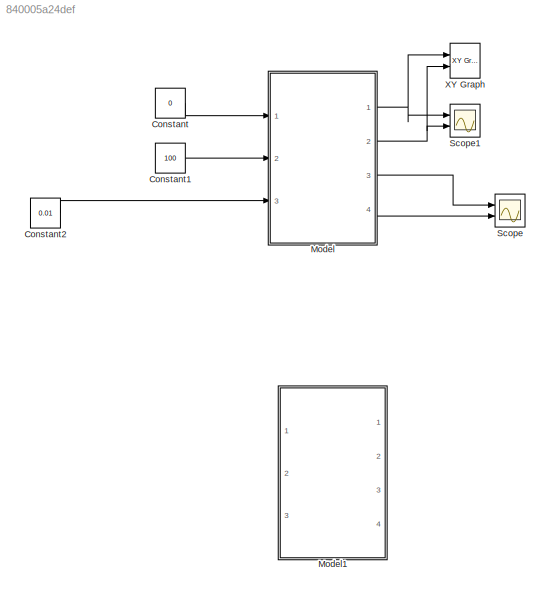
MODEL slx_840005a24def
KIND model
CONFIG AbsTol = auto
CONFIG EnableMultiTasking = off
CONFIG FixedStep = auto
CONFIG MaxStep = auto
CONFIG MinStep = auto
CONFIG RelTol = 1e-3
CONFIG SampleTimeConstraint = Unconstrained
CONFIG Solver = VariableStepAuto
CONFIG SolverName = VariableStepAuto
CONFIG StartTime = 0.0
CONFIG StopTime = 10.0
BLOCK [Constant] Constant
  Value = 0
BLOCK [Constant] Constant1
  Value = 100
BLOCK [Constant] Constant2
  Value = 0.01
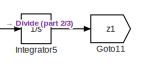
[diagram: Model - part 1/3, top right region]
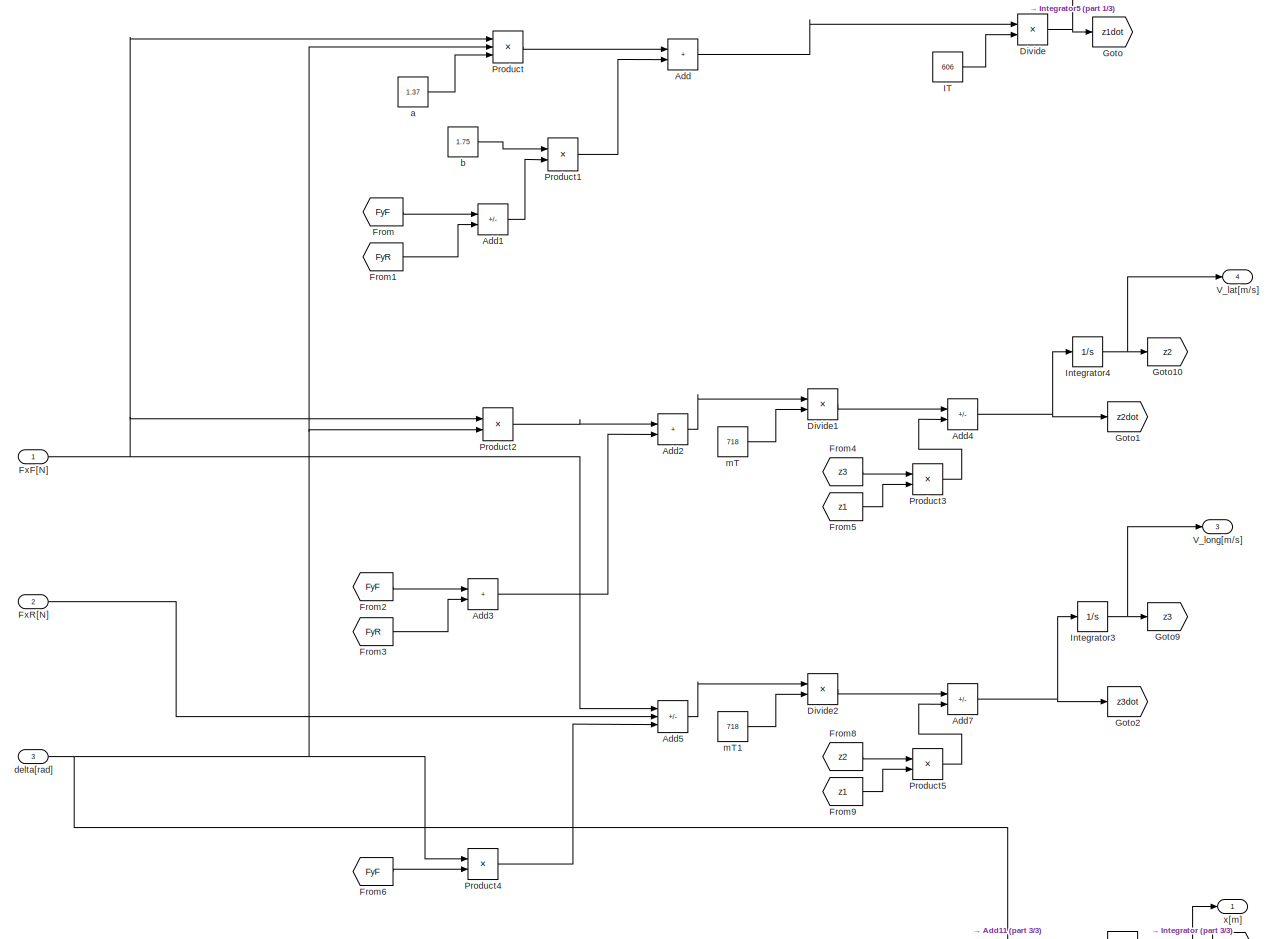
[diagram: Model - part 2/3, full width, top band]
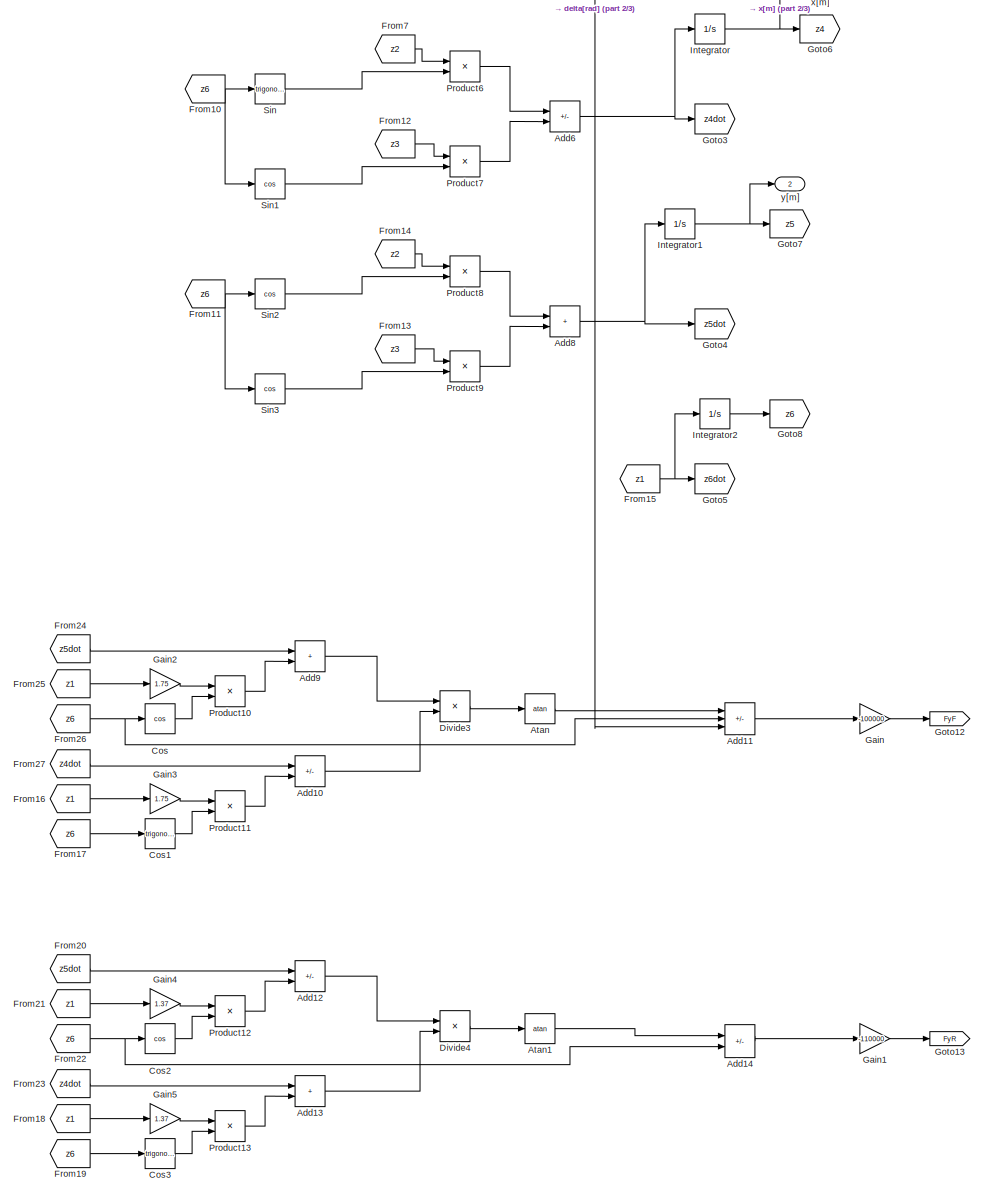
[diagram: Model - part 3/3, bottom center region]
BLOCK [SubSystem] Model
  Ports = [3, 4]
  RequestExecContextInheritance = off
BLOCK [Sum] Model/Add
  IconShape = rectangular
  Ports = [2, 1]
BLOCK [Sum] Model/Add1
  IconShape = rectangular
  Inputs = +-
  Ports = [2, 1]
BLOCK [Sum] Model/Add10
  IconShape = rectangular
  Inputs = +-
  Ports = [2, 1]
BLOCK [Sum] Model/Add11
  IconShape = rectangular
  Inputs = +--
  Ports = [3, 1]
BLOCK [Sum] Model/Add12
  IconShape = rectangular
  Inputs = +-
  Ports = [2, 1]
BLOCK [Sum] Model/Add13
  IconShape = rectangular
  Ports = [2, 1]
BLOCK [Sum] Model/Add14
  IconShape = rectangular
  Inputs = +-
  Ports = [2, 1]
BLOCK [Sum] Model/Add2
  IconShape = rectangular
  Ports = [2, 1]
BLOCK [Sum] Model/Add3
  IconShape = rectangular
  Ports = [2, 1]
BLOCK [Sum] Model/Add4
  IconShape = rectangular
  Inputs = +-
  Ports = [2, 1]
BLOCK [Sum] Model/Add5
  IconShape = rectangular
  Inputs = ++-
  Ports = [3, 1]
BLOCK [Sum] Model/Add6
  IconShape = rectangular
  Inputs = -+
  Ports = [2, 1]
BLOCK [Sum] Model/Add7
  IconShape = rectangular
  Inputs = +-
  Ports = [2, 1]
BLOCK [Sum] Model/Add8
  IconShape = rectangular
  Ports = [2, 1]
BLOCK [Sum] Model/Add9
  IconShape = rectangular
  Ports = [2, 1]
BLOCK [Trigonometry] Model/Atan
  Operator = atan
  Ports = [1, 1]
BLOCK [Trigonometry] Model/Atan1
  Operator = atan
  Ports = [1, 1]
BLOCK [Trigonometry] Model/Cos
  Operator = cos
  Ports = [1, 1]
BLOCK [Trigonometry] Model/Cos1
  Ports = [1, 1]
BLOCK [Trigonometry] Model/Cos2
  Operator = cos
  Ports = [1, 1]
BLOCK [Trigonometry] Model/Cos3
  Ports = [1, 1]
BLOCK [Product] Model/Divide
  Inputs = */
  Ports = [2, 1]
BLOCK [Product] Model/Divide1
  Inputs = */
  Ports = [2, 1]
BLOCK [Product] Model/Divide2
  Inputs = */
  Ports = [2, 1]
BLOCK [Product] Model/Divide3
  Inputs = */
  Ports = [2, 1]
BLOCK [Product] Model/Divide4
  Inputs = */
  Ports = [2, 1]
BLOCK [From] Model/From
  GotoTag = FyF
BLOCK [From] Model/From1
  GotoTag = FyR
BLOCK [From] Model/From10
  GotoTag = z6
BLOCK [From] Model/From11
  GotoTag = z6
BLOCK [From] Model/From12
  GotoTag = z3
BLOCK [From] Model/From13
  GotoTag = z3
BLOCK [From] Model/From14
  GotoTag = z2
BLOCK [From] Model/From15
  GotoTag = z1
BLOCK [From] Model/From16
  GotoTag = z1
BLOCK [From] Model/From17
  GotoTag = z6
BLOCK [From] Model/From18
  GotoTag = z1
BLOCK [From] Model/From19
  GotoTag = z6
BLOCK [From] Model/From2
  GotoTag = FyF
BLOCK [From] Model/From20
  GotoTag = z5dot
BLOCK [From] Model/From21
  GotoTag = z1
BLOCK [From] Model/From22
  GotoTag = z6
BLOCK [From] Model/From23
  GotoTag = z4dot
BLOCK [From] Model/From24
  GotoTag = z5dot
BLOCK [From] Model/From25
  GotoTag = z1
BLOCK [From] Model/From26
  GotoTag = z6
BLOCK [From] Model/From27
  GotoTag = z4dot
BLOCK [From] Model/From3
  GotoTag = FyR
BLOCK [From] Model/From4
  GotoTag = z3
BLOCK [From] Model/From5
  GotoTag = z1
BLOCK [From] Model/From6
  GotoTag = FyF
BLOCK [From] Model/From7
  GotoTag = z2
BLOCK [From] Model/From8
  GotoTag = z2
BLOCK [From] Model/From9
  GotoTag = z1
BLOCK [Inport] Model/FxF[N]
  Unit = N
BLOCK [Inport] Model/FxR[N]
  Port = 2
  Unit = N
BLOCK [Gain] Model/Gain
  Gain = -100000
BLOCK [Gain] Model/Gain1
  Gain = -110000
BLOCK [Gain] Model/Gain2
  Gain = 1.75
BLOCK [Gain] Model/Gain3
  Gain = 1.75
BLOCK [Gain] Model/Gain4
  Gain = 1.37
BLOCK [Gain] Model/Gain5
  Gain = 1.37
BLOCK [Goto] Model/Goto
  GotoTag = z1dot
BLOCK [Goto] Model/Goto1
  GotoTag = z2dot
BLOCK [Goto] Model/Goto10
  GotoTag = z2
BLOCK [Goto] Model/Goto11
  GotoTag = z1
BLOCK [Goto] Model/Goto12
  GotoTag = FyF
BLOCK [Goto] Model/Goto13
  GotoTag = FyR
BLOCK [Goto] Model/Goto2
  GotoTag = z3dot
BLOCK [Goto] Model/Goto3
  GotoTag = z4dot
BLOCK [Goto] Model/Goto4
  GotoTag = z5dot
BLOCK [Goto] Model/Goto5
  GotoTag = z6dot
BLOCK [Goto] Model/Goto6
  GotoTag = z4
BLOCK [Goto] Model/Goto7
  GotoTag = z5
BLOCK [Goto] Model/Goto8
  GotoTag = z6
BLOCK [Goto] Model/Goto9
  GotoTag = z3
BLOCK [Constant] Model/IT
  Value = 606
BLOCK [Integrator] Model/Integrator
  Ports = [1, 1]
BLOCK [Integrator] Model/Integrator1
  Ports = [1, 1]
BLOCK [Integrator] Model/Integrator2
  Ports = [1, 1]
BLOCK [Integrator] Model/Integrator3
  InitialCondition = 10
  Ports = [1, 1]
BLOCK [Integrator] Model/Integrator4
  Ports = [1, 1]
BLOCK [Integrator] Model/Integrator5
  Ports = [1, 1]
BLOCK [Product] Model/Product
  Inputs = 3
  Ports = [3, 1]
BLOCK [Product] Model/Product1
  Ports = [2, 1]
BLOCK [Product] Model/Product10
  Ports = [2, 1]
BLOCK [Product] Model/Product11
  Ports = [2, 1]
BLOCK [Product] Model/Product12
  Ports = [2, 1]
BLOCK [Product] Model/Product13
  Ports = [2, 1]
BLOCK [Product] Model/Product2
  Ports = [2, 1]
BLOCK [Product] Model/Product3
  Ports = [2, 1]
BLOCK [Product] Model/Product4
  Ports = [2, 1]
BLOCK [Product] Model/Product5
  Ports = [2, 1]
BLOCK [Product] Model/Product6
  Ports = [2, 1]
BLOCK [Product] Model/Product7
  Ports = [2, 1]
BLOCK [Product] Model/Product8
  Ports = [2, 1]
BLOCK [Product] Model/Product9
  Ports = [2, 1]
BLOCK [Trigonometry] Model/Sin
  Ports = [1, 1]
BLOCK [Trigonometry] Model/Sin1
  Operator = cos
  Ports = [1, 1]
BLOCK [Trigonometry] Model/Sin2
  Operator = cos
  Ports = [1, 1]
BLOCK [Trigonometry] Model/Sin3
  Operator = cos
  Ports = [1, 1]
BLOCK [Outport] Model/V_lat[m//s]
  Port = 4
  Unit = m/s
BLOCK [Outport] Model/V_long[m//s]
  Port = 3
  Unit = m/s
BLOCK [Constant] Model/a
  Value = 1.37
BLOCK [Constant] Model/b
  Value = 1.75
BLOCK [Inport] Model/delta[rad]
  Port = 3
  Unit = rad
BLOCK [Constant] Model/mT
  Value = 718
BLOCK [Constant] Model/mT1
  Value = 718
BLOCK [Outport] Model/x[m]
  Unit = m
BLOCK [Outport] Model/y[m]
  Port = 2
  Unit = m
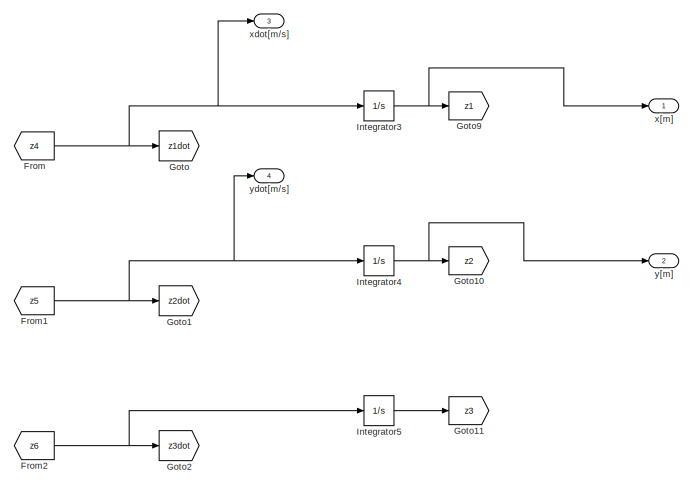
[diagram: Model1 - part 1/3, top right region]
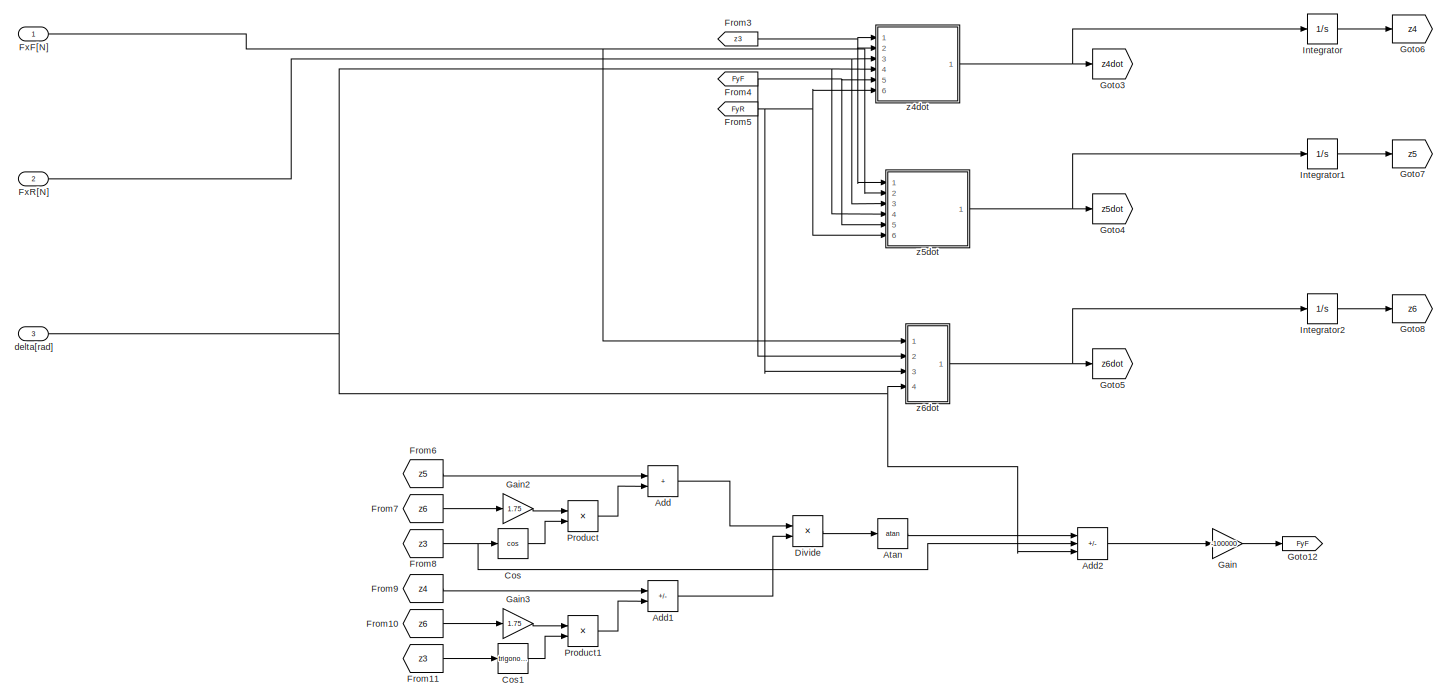
[diagram: Model1 - part 2/3, full width, middle band]
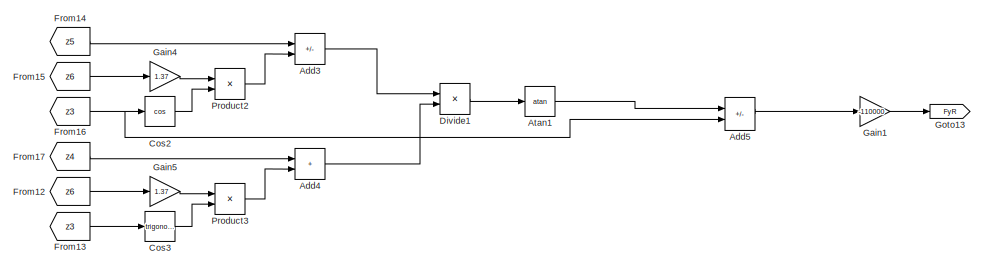
[diagram: Model1 - part 3/3, bottom center region]
BLOCK [SubSystem] Model1
  Ports = [3, 4]
  RequestExecContextInheritance = off
BLOCK [Sum] Model1/Add
  IconShape = rectangular
  Ports = [2, 1]
BLOCK [Sum] Model1/Add1
  IconShape = rectangular
  Inputs = +-
  Ports = [2, 1]
BLOCK [Sum] Model1/Add2
  IconShape = rectangular
  Inputs = +--
  Ports = [3, 1]
BLOCK [Sum] Model1/Add3
  IconShape = rectangular
  Inputs = +-
  Ports = [2, 1]
BLOCK [Sum] Model1/Add4
  IconShape = rectangular
  Ports = [2, 1]
BLOCK [Sum] Model1/Add5
  IconShape = rectangular
  Inputs = +-
  Ports = [2, 1]
BLOCK [Trigonometry] Model1/Atan
  Operator = atan
  Ports = [1, 1]
BLOCK [Trigonometry] Model1/Atan1
  Operator = atan
  Ports = [1, 1]
BLOCK [Trigonometry] Model1/Cos
  Operator = cos
  Ports = [1, 1]
BLOCK [Trigonometry] Model1/Cos1
  Ports = [1, 1]
BLOCK [Trigonometry] Model1/Cos2
  Operator = cos
  Ports = [1, 1]
BLOCK [Trigonometry] Model1/Cos3
  Ports = [1, 1]
BLOCK [Product] Model1/Divide
  Inputs = */
  Ports = [2, 1]
BLOCK [Product] Model1/Divide1
  Inputs = */
  Ports = [2, 1]
BLOCK [From] Model1/From
  GotoTag = z4
BLOCK [From] Model1/From1
  GotoTag = z5
BLOCK [From] Model1/From10
  GotoTag = z6
BLOCK [From] Model1/From11
  GotoTag = z3
BLOCK [From] Model1/From12
  GotoTag = z6
BLOCK [From] Model1/From13
  GotoTag = z3
BLOCK [From] Model1/From14
  GotoTag = z5
BLOCK [From] Model1/From15
  GotoTag = z6
BLOCK [From] Model1/From16
  GotoTag = z3
BLOCK [From] Model1/From17
  GotoTag = z4
BLOCK [From] Model1/From2
  GotoTag = z6
BLOCK [From] Model1/From3
  GotoTag = z3
BLOCK [From] Model1/From4
  GotoTag = FyF
BLOCK [From] Model1/From5
  GotoTag = FyR
BLOCK [From] Model1/From6
  GotoTag = z5
BLOCK [From] Model1/From7
  GotoTag = z6
BLOCK [From] Model1/From8
  GotoTag = z3
BLOCK [From] Model1/From9
  GotoTag = z4
BLOCK [Inport] Model1/FxF[N]
  Unit = N
BLOCK [Inport] Model1/FxR[N]
  Port = 2
  Unit = N
BLOCK [Gain] Model1/Gain
  Gain = -100000
BLOCK [Gain] Model1/Gain1
  Gain = -110000
BLOCK [Gain] Model1/Gain2
  Gain = 1.75
BLOCK [Gain] Model1/Gain3
  Gain = 1.75
BLOCK [Gain] Model1/Gain4
  Gain = 1.37
BLOCK [Gain] Model1/Gain5
  Gain = 1.37
BLOCK [Goto] Model1/Goto
  GotoTag = z1dot
BLOCK [Goto] Model1/Goto1
  GotoTag = z2dot
BLOCK [Goto] Model1/Goto10
  GotoTag = z2
BLOCK [Goto] Model1/Goto11
  GotoTag = z3
BLOCK [Goto] Model1/Goto12
  GotoTag = FyF
BLOCK [Goto] Model1/Goto13
  GotoTag = FyR
BLOCK [Goto] Model1/Goto2
  GotoTag = z3dot
BLOCK [Goto] Model1/Goto3
  GotoTag = z4dot
BLOCK [Goto] Model1/Goto4
  GotoTag = z5dot
BLOCK [Goto] Model1/Goto5
  GotoTag = z6dot
BLOCK [Goto] Model1/Goto6
  GotoTag = z4
BLOCK [Goto] Model1/Goto7
  GotoTag = z5
BLOCK [Goto] Model1/Goto8
  GotoTag = z6
BLOCK [Goto] Model1/Goto9
  GotoTag = z1
BLOCK [Integrator] Model1/Integrator
  InitialCondition = 10
  Ports = [1, 1]
BLOCK [Integrator] Model1/Integrator1
  Ports = [1, 1]
BLOCK [Integrator] Model1/Integrator2
  Ports = [1, 1]
BLOCK [Integrator] Model1/Integrator3
  Ports = [1, 1]
BLOCK [Integrator] Model1/Integrator4
  Ports = [1, 1]
BLOCK [Integrator] Model1/Integrator5
  Ports = [1, 1]
BLOCK [Product] Model1/Product
  Ports = [2, 1]
BLOCK [Product] Model1/Product1
  Ports = [2, 1]
BLOCK [Product] Model1/Product2
  Ports = [2, 1]
BLOCK [Product] Model1/Product3
  Ports = [2, 1]
BLOCK [Inport] Model1/delta[rad]
  Port = 3
  Unit = rad
BLOCK [Outport] Model1/x[m]
  Unit = m
BLOCK [Outport] Model1/xdot[m//s]
  Port = 3
  Unit = m/s
BLOCK [Outport] Model1/y[m]
  Port = 2
  Unit = m
BLOCK [Outport] Model1/ydot[m//s]
  Port = 4
  Unit = m/s
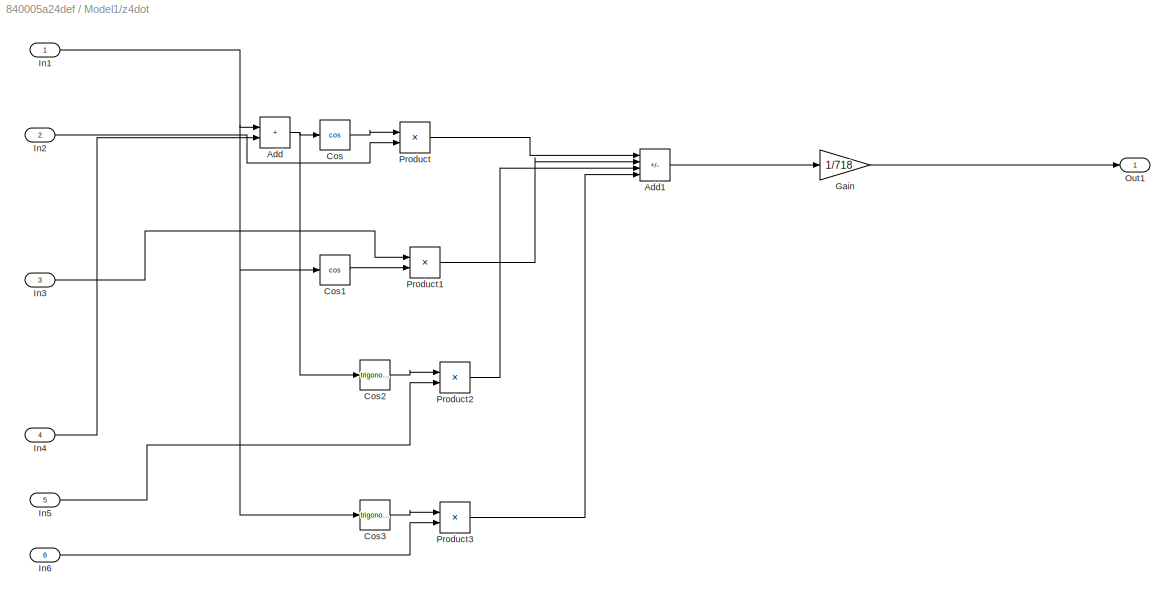
BLOCK [SubSystem] Model1/z4dot
  Ports = [6, 1]
  RequestExecContextInheritance = off
BLOCK [Sum] Model1/z4dot/Add
  IconShape = rectangular
  Ports = [2, 1]
BLOCK [Sum] Model1/z4dot/Add1
  IconShape = rectangular
  Inputs = ++--
  Ports = [4, 1]
BLOCK [Trigonometry] Model1/z4dot/Cos
  Operator = cos
  Ports = [1, 1]
BLOCK [Trigonometry] Model1/z4dot/Cos1
  Operator = cos
  Ports = [1, 1]
BLOCK [Trigonometry] Model1/z4dot/Cos2
  Ports = [1, 1]
BLOCK [Trigonometry] Model1/z4dot/Cos3
  Ports = [1, 1]
BLOCK [Gain] Model1/z4dot/Gain
  Gain = 1/718
BLOCK [Inport] Model1/z4dot/In1
BLOCK [Inport] Model1/z4dot/In2
  Port = 2
BLOCK [Inport] Model1/z4dot/In3
  Port = 3
BLOCK [Inport] Model1/z4dot/In4
  Port = 4
BLOCK [Inport] Model1/z4dot/In5
  Port = 5
BLOCK [Inport] Model1/z4dot/In6
  Port = 6
BLOCK [Outport] Model1/z4dot/Out1
BLOCK [Product] Model1/z4dot/Product
  Ports = [2, 1]
BLOCK [Product] Model1/z4dot/Product1
  Ports = [2, 1]
BLOCK [Product] Model1/z4dot/Product2
  Ports = [2, 1]
BLOCK [Product] Model1/z4dot/Product3
  Ports = [2, 1]
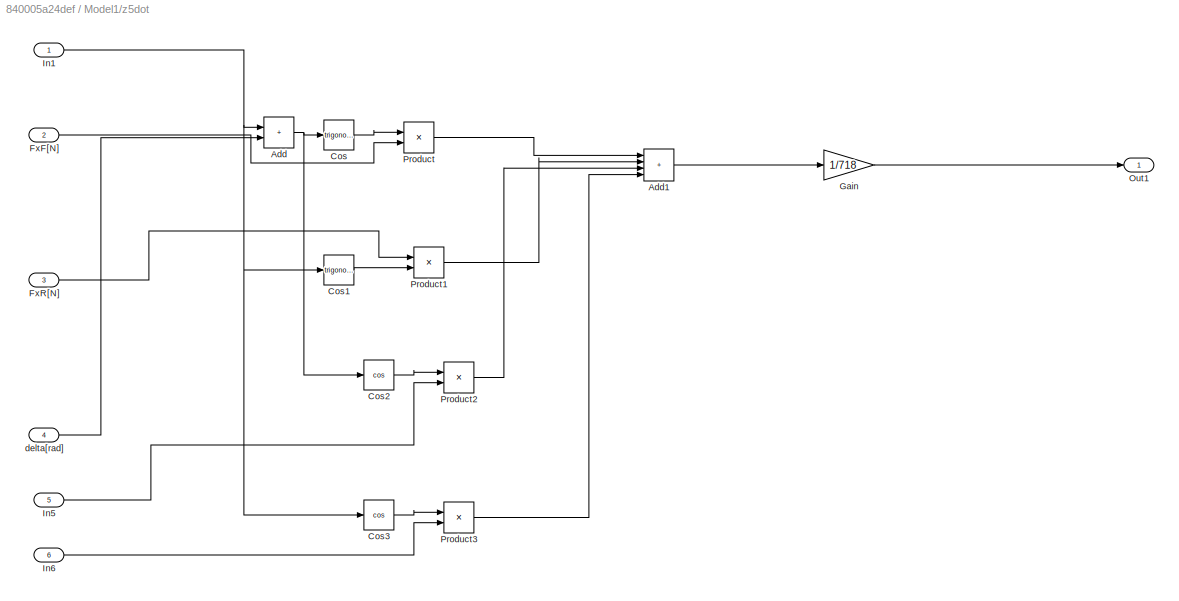
BLOCK [SubSystem] Model1/z5dot
  Ports = [6, 1]
  RequestExecContextInheritance = off
BLOCK [Sum] Model1/z5dot/Add
  IconShape = rectangular
  Ports = [2, 1]
BLOCK [Sum] Model1/z5dot/Add1
  IconShape = rectangular
  Inputs = ++++
  Ports = [4, 1]
BLOCK [Trigonometry] Model1/z5dot/Cos
  Ports = [1, 1]
BLOCK [Trigonometry] Model1/z5dot/Cos1
  Ports = [1, 1]
BLOCK [Trigonometry] Model1/z5dot/Cos2
  Operator = cos
  Ports = [1, 1]
BLOCK [Trigonometry] Model1/z5dot/Cos3
  Operator = cos
  Ports = [1, 1]
BLOCK [Inport] Model1/z5dot/FxF[N]
  Port = 2
BLOCK [Inport] Model1/z5dot/FxR[N]
  Port = 3
BLOCK [Gain] Model1/z5dot/Gain
  Gain = 1/718
BLOCK [Inport] Model1/z5dot/In1
BLOCK [Inport] Model1/z5dot/In5
  Port = 5
BLOCK [Inport] Model1/z5dot/In6
  Port = 6
BLOCK [Outport] Model1/z5dot/Out1
BLOCK [Product] Model1/z5dot/Product
  Ports = [2, 1]
BLOCK [Product] Model1/z5dot/Product1
  Ports = [2, 1]
BLOCK [Product] Model1/z5dot/Product2
  Ports = [2, 1]
BLOCK [Product] Model1/z5dot/Product3
  Ports = [2, 1]
BLOCK [Inport] Model1/z5dot/delta[rad]
  Port = 4
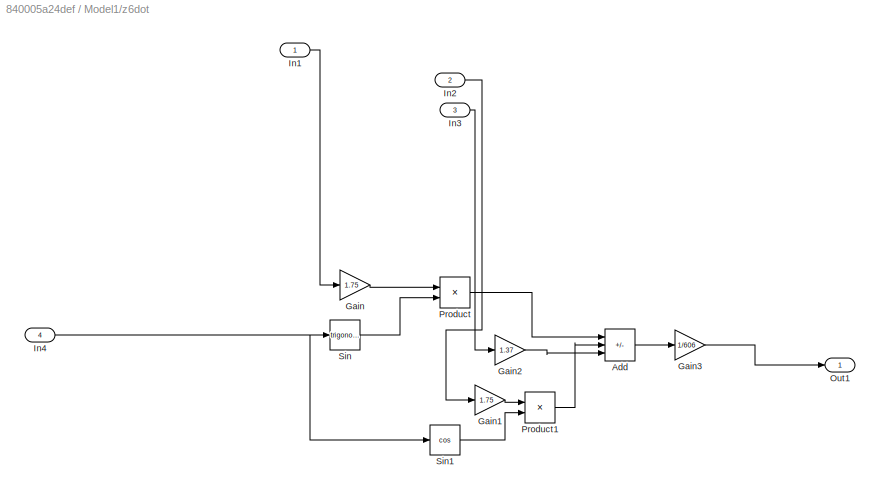
BLOCK [SubSystem] Model1/z6dot
  Ports = [4, 1]
  RequestExecContextInheritance = off
BLOCK [Sum] Model1/z6dot/Add
  IconShape = rectangular
  Inputs = ++-
  Ports = [3, 1]
BLOCK [Gain] Model1/z6dot/Gain
  Gain = 1.75
BLOCK [Gain] Model1/z6dot/Gain1
  Gain = 1.75
BLOCK [Gain] Model1/z6dot/Gain2
  Gain = 1.37
BLOCK [Gain] Model1/z6dot/Gain3
  Gain = 1/606
BLOCK [Inport] Model1/z6dot/In1
BLOCK [Inport] Model1/z6dot/In2
  Port = 2
BLOCK [Inport] Model1/z6dot/In3
  Port = 3
BLOCK [Inport] Model1/z6dot/In4
  Port = 4
BLOCK [Outport] Model1/z6dot/Out1
BLOCK [Product] Model1/z6dot/Product
  Ports = [2, 1]
BLOCK [Product] Model1/z6dot/Product1
  Ports = [2, 1]
BLOCK [Trigonometry] Model1/z6dot/Sin
  Ports = [1, 1]
BLOCK [Trigonometry] Model1/z6dot/Sin1
  Operator = cos
  Ports = [1, 1]
BLOCK [Scope] Scope
  Floating = off
  NumInputPorts = 2
  Ports = [2]
  ScopeSpecificationString = Simulink.scopes.TimeScopeBlockCfg('CurrentConfiguration', extmgr.ConfigurationSet(extmgr.Configuration('Core','General UI',true,'FigureColor',[1 1 1]),extmgr.Configuration('Core','Source UI',true),extmgr.Configuration('Sources','WiredSimulink',true),extmgr.Configuration('Visuals','Time Domain',true,'SerializedDisplays',{struct('MinYLimReal','9.31207','MaxYLimReal','16.19141','YLabelReal','','MinYL...<+3068ch>
BLOCK [Scope] Scope1
  Floating = off
  NumInputPorts = 2
  Ports = [2]
  ScopeSpecificationString = Simulink.scopes.TimeScopeBlockCfg('CurrentConfiguration', extmgr.ConfigurationSet(extmgr.Configuration('Core','General UI',true,'FigureColor',[1 1 1]),extmgr.Configuration('Core','Source UI',true),extmgr.Configuration('Sources','WiredSimulink',true,'DataLoggingVariableName','ScopeData1'),extmgr.Configuration('Visuals','Time Domain',true,'SerializedDisplays',{struct('MinYLimReal','-17.65621','MaxYL...<+3056ch>
BLOCK [Reference] XY Graph  REF=simulink/Sinks/XY Graph
  Ports = [2]
  SourceBlock = simulink/Sinks/XY Graph
  SourceProductBaseCode = SL
  SourceType = XY scope.
LINE Constant1:1 -> Model:2
LINE Constant2:1 -> Model:3
LINE Constant:1 -> Model:1
LINE Model/Add10:1 -> Model/Divide3:2
LINE Model/Add11:1 -> Model/Gain:1
LINE Model/Add12:1 -> Model/Divide4:1
LINE Model/Add13:1 -> Model/Divide4:2
LINE Model/Add14:1 -> Model/Gain1:1
LINE Model/Add1:1 -> Model/Product1:2
LINE Model/Add2:1 -> Model/Divide1:1
LINE Model/Add3:1 -> Model/Add2:2
NET Model/Add4:1 -> Model/Goto1:1, Model/Integrator4:1
LINE Model/Add5:1 -> Model/Divide2:1
NET Model/Add6:1 -> Model/Goto3:1, Model/Integrator:1
NET Model/Add7:1 -> Model/Goto2:1, Model/Integrator3:1
NET Model/Add8:1 -> Model/Goto4:1, Model/Integrator1:1
LINE Model/Add9:1 -> Model/Divide3:1
LINE Model/Add:1 -> Model/Divide:1
LINE Model/Atan1:1 -> Model/Add14:1
LINE Model/Atan:1 -> Model/Add11:1
LINE Model/Cos1:1 -> Model/Product11:2
LINE Model/Cos2:1 -> Model/Product12:2
LINE Model/Cos3:1 -> Model/Product13:2
LINE Model/Cos:1 -> Model/Product10:2
LINE Model/Divide1:1 -> Model/Add4:1
LINE Model/Divide2:1 -> Model/Add7:1
LINE Model/Divide3:1 -> Model/Atan:1
LINE Model/Divide4:1 -> Model/Atan1:1
NET Model/Divide:1 -> Model/Goto:1, Model/Integrator5:1
NET Model/From10:1 -> Model/Sin1:1, Model/Sin:1
NET Model/From11:1 -> Model/Sin2:1, Model/Sin3:1
LINE Model/From12:1 -> Model/Product7:1
LINE Model/From13:1 -> Model/Product9:1
LINE Model/From14:1 -> Model/Product8:1
NET Model/From15:1 -> Model/Goto5:1, Model/Integrator2:1
LINE Model/From16:1 -> Model/Gain3:1
LINE Model/From17:1 -> Model/Cos1:1
LINE Model/From18:1 -> Model/Gain5:1
LINE Model/From19:1 -> Model/Cos3:1
LINE Model/From1:1 -> Model/Add1:2
LINE Model/From20:1 -> Model/Add12:1
LINE Model/From21:1 -> Model/Gain4:1
NET Model/From22:1 -> Model/Add14:2, Model/Cos2:1
LINE Model/From23:1 -> Model/Add13:1
LINE Model/From24:1 -> Model/Add9:1
LINE Model/From25:1 -> Model/Gain2:1
NET Model/From26:1 -> Model/Add11:2, Model/Cos:1
LINE Model/From27:1 -> Model/Add10:1
LINE Model/From2:1 -> Model/Add3:1
LINE Model/From3:1 -> Model/Add3:2
LINE Model/From4:1 -> Model/Product3:1
LINE Model/From5:1 -> Model/Product3:2
LINE Model/From6:1 -> Model/Product4:2
LINE Model/From7:1 -> Model/Product6:1
LINE Model/From8:1 -> Model/Product5:1
LINE Model/From9:1 -> Model/Product5:2
LINE Model/From:1 -> Model/Add1:1
NET Model/FxF[N]:1 -> Model/Add5:1, Model/Product2:1, Model/Product:1
LINE Model/FxR[N]:1 -> Model/Add5:2
LINE Model/Gain1:1 -> Model/Goto13:1
LINE Model/Gain2:1 -> Model/Product10:1
LINE Model/Gain3:1 -> Model/Product11:1
LINE Model/Gain4:1 -> Model/Product12:1
LINE Model/Gain5:1 -> Model/Product13:1
LINE Model/Gain:1 -> Model/Goto12:1
LINE Model/IT:1 -> Model/Divide:2
NET Model/Integrator1:1 -> Model/Goto7:1, Model/y[m]:1
LINE Model/Integrator2:1 -> Model/Goto8:1
NET Model/Integrator3:1 -> Model/Goto9:1, Model/V_long[m//s]:1
NET Model/Integrator4:1 -> Model/Goto10:1, Model/V_lat[m//s]:1
LINE Model/Integrator5:1 -> Model/Goto11:1
NET Model/Integrator:1 -> Model/Goto6:1, Model/x[m]:1
LINE Model/Product10:1 -> Model/Add9:2
LINE Model/Product11:1 -> Model/Add10:2
LINE Model/Product12:1 -> Model/Add12:2
LINE Model/Product13:1 -> Model/Add13:2
LINE Model/Product1:1 -> Model/Add:2
LINE Model/Product2:1 -> Model/Add2:1
LINE Model/Product3:1 -> Model/Add4:2
LINE Model/Product4:1 -> Model/Add5:3
LINE Model/Product5:1 -> Model/Add7:2
LINE Model/Product6:1 -> Model/Add6:1
LINE Model/Product7:1 -> Model/Add6:2
LINE Model/Product8:1 -> Model/Add8:1
LINE Model/Product9:1 -> Model/Add8:2
LINE Model/Product:1 -> Model/Add:1
LINE Model/Sin1:1 -> Model/Product7:2
LINE Model/Sin2:1 -> Model/Product8:2
LINE Model/Sin3:1 -> Model/Product9:2
LINE Model/Sin:1 -> Model/Product6:2
LINE Model/a:1 -> Model/Product:3
LINE Model/b:1 -> Model/Product1:1
NET Model/delta[rad]:1 -> Model/Add11:3, Model/Product2:2, Model/Product4:1, Model/Product:2
LINE Model/mT1:1 -> Model/Divide2:2
LINE Model/mT:1 -> Model/Divide1:2
LINE Model1/Add1:1 -> Model1/Divide:2
LINE Model1/Add2:1 -> Model1/Gain:1
LINE Model1/Add3:1 -> Model1/Divide1:1
LINE Model1/Add4:1 -> Model1/Divide1:2
LINE Model1/Add5:1 -> Model1/Gain1:1
LINE Model1/Add:1 -> Model1/Divide:1
LINE Model1/Atan1:1 -> Model1/Add5:1
LINE Model1/Atan:1 -> Model1/Add2:1
LINE Model1/Cos1:1 -> Model1/Product1:2
LINE Model1/Cos2:1 -> Model1/Product2:2
LINE Model1/Cos3:1 -> Model1/Product3:2
LINE Model1/Cos:1 -> Model1/Product:2
LINE Model1/Divide1:1 -> Model1/Atan1:1
LINE Model1/Divide:1 -> Model1/Atan:1
LINE Model1/From10:1 -> Model1/Gain3:1
LINE Model1/From11:1 -> Model1/Cos1:1
LINE Model1/From12:1 -> Model1/Gain5:1
LINE Model1/From13:1 -> Model1/Cos3:1
LINE Model1/From14:1 -> Model1/Add3:1
LINE Model1/From15:1 -> Model1/Gain4:1
NET Model1/From16:1 -> Model1/Add5:2, Model1/Cos2:1
LINE Model1/From17:1 -> Model1/Add4:1
NET Model1/From1:1 -> Model1/Goto1:1, Model1/Integrator4:1, Model1/ydot[m//s]:1
NET Model1/From2:1 -> Model1/Goto2:1, Model1/Integrator5:1
NET Model1/From3:1 -> Model1/z4dot:1, Model1/z5dot:1
NET Model1/From4:1 -> Model1/z4dot:5, Model1/z5dot:5, Model1/z6dot:2
NET Model1/From5:1 -> Model1/z4dot:6, Model1/z5dot:6, Model1/z6dot:3
LINE Model1/From6:1 -> Model1/Add:1
LINE Model1/From7:1 -> Model1/Gain2:1
NET Model1/From8:1 -> Model1/Add2:2, Model1/Cos:1
LINE Model1/From9:1 -> Model1/Add1:1
NET Model1/From:1 -> Model1/Goto:1, Model1/Integrator3:1, Model1/xdot[m//s]:1
NET Model1/FxF[N]:1 -> Model1/z4dot:2, Model1/z5dot:2, Model1/z6dot:1
NET Model1/FxR[N]:1 -> Model1/z4dot:3, Model1/z5dot:3
LINE Model1/Gain1:1 -> Model1/Goto13:1
LINE Model1/Gain2:1 -> Model1/Product:1
LINE Model1/Gain3:1 -> Model1/Product1:1
LINE Model1/Gain4:1 -> Model1/Product2:1
LINE Model1/Gain5:1 -> Model1/Product3:1
LINE Model1/Gain:1 -> Model1/Goto12:1
LINE Model1/Integrator1:1 -> Model1/Goto7:1
LINE Model1/Integrator2:1 -> Model1/Goto8:1
NET Model1/Integrator3:1 -> Model1/Goto9:1, Model1/x[m]:1
NET Model1/Integrator4:1 -> Model1/Goto10:1, Model1/y[m]:1
LINE Model1/Integrator5:1 -> Model1/Goto11:1
LINE Model1/Integrator:1 -> Model1/Goto6:1
LINE Model1/Product1:1 -> Model1/Add1:2
LINE Model1/Product2:1 -> Model1/Add3:2
LINE Model1/Product3:1 -> Model1/Add4:2
LINE Model1/Product:1 -> Model1/Add:2
NET Model1/delta[rad]:1 -> Model1/Add2:3, Model1/z4dot:4, Model1/z5dot:4, Model1/z6dot:4
LINE Model1/z4dot/Add1:1 -> Model1/z4dot/Gain:1
NET Model1/z4dot/Add:1 -> Model1/z4dot/Cos2:1, Model1/z4dot/Cos:1
LINE Model1/z4dot/Cos1:1 -> Model1/z4dot/Product1:2
LINE Model1/z4dot/Cos2:1 -> Model1/z4dot/Product2:1
LINE Model1/z4dot/Cos3:1 -> Model1/z4dot/Product3:1
LINE Model1/z4dot/Cos:1 -> Model1/z4dot/Product:1
LINE Model1/z4dot/Gain:1 -> Model1/z4dot/Out1:1
NET Model1/z4dot/In1:1 -> Model1/z4dot/Add:1, Model1/z4dot/Cos1:1, Model1/z4dot/Cos3:1
LINE Model1/z4dot/In2:1 -> Model1/z4dot/Product:2
LINE Model1/z4dot/In3:1 -> Model1/z4dot/Product1:1
LINE Model1/z4dot/In4:1 -> Model1/z4dot/Add:2
LINE Model1/z4dot/In5:1 -> Model1/z4dot/Product2:2
LINE Model1/z4dot/In6:1 -> Model1/z4dot/Product3:2
LINE Model1/z4dot/Product1:1 -> Model1/z4dot/Add1:2
LINE Model1/z4dot/Product2:1 -> Model1/z4dot/Add1:3
LINE Model1/z4dot/Product3:1 -> Model1/z4dot/Add1:4
LINE Model1/z4dot/Product:1 -> Model1/z4dot/Add1:1
NET Model1/z4dot:1 -> Model1/Goto3:1, Model1/Integrator:1
LINE Model1/z5dot/Add1:1 -> Model1/z5dot/Gain:1
NET Model1/z5dot/Add:1 -> Model1/z5dot/Cos2:1, Model1/z5dot/Cos:1
LINE Model1/z5dot/Cos1:1 -> Model1/z5dot/Product1:2
LINE Model1/z5dot/Cos2:1 -> Model1/z5dot/Product2:1
LINE Model1/z5dot/Cos3:1 -> Model1/z5dot/Product3:1
LINE Model1/z5dot/Cos:1 -> Model1/z5dot/Product:1
LINE Model1/z5dot/FxF[N]:1 -> Model1/z5dot/Product:2
LINE Model1/z5dot/FxR[N]:1 -> Model1/z5dot/Product1:1
LINE Model1/z5dot/Gain:1 -> Model1/z5dot/Out1:1
NET Model1/z5dot/In1:1 -> Model1/z5dot/Add:1, Model1/z5dot/Cos1:1, Model1/z5dot/Cos3:1
LINE Model1/z5dot/In5:1 -> Model1/z5dot/Product2:2
LINE Model1/z5dot/In6:1 -> Model1/z5dot/Product3:2
LINE Model1/z5dot/Product1:1 -> Model1/z5dot/Add1:2
LINE Model1/z5dot/Product2:1 -> Model1/z5dot/Add1:3
LINE Model1/z5dot/Product3:1 -> Model1/z5dot/Add1:4
LINE Model1/z5dot/Product:1 -> Model1/z5dot/Add1:1
LINE Model1/z5dot/delta[rad]:1 -> Model1/z5dot/Add:2
NET Model1/z5dot:1 -> Model1/Goto4:1, Model1/Integrator1:1
LINE Model1/z6dot/Add:1 -> Model1/z6dot/Gain3:1
LINE Model1/z6dot/Gain1:1 -> Model1/z6dot/Product1:1
LINE Model1/z6dot/Gain2:1 -> Model1/z6dot/Add:3
LINE Model1/z6dot/Gain3:1 -> Model1/z6dot/Out1:1
LINE Model1/z6dot/Gain:1 -> Model1/z6dot/Product:1
LINE Model1/z6dot/In1:1 -> Model1/z6dot/Gain:1
LINE Model1/z6dot/In2:1 -> Model1/z6dot/Gain1:1
LINE Model1/z6dot/In3:1 -> Model1/z6dot/Gain2:1
NET Model1/z6dot/In4:1 -> Model1/z6dot/Sin1:1, Model1/z6dot/Sin:1
LINE Model1/z6dot/Product1:1 -> Model1/z6dot/Add:2
LINE Model1/z6dot/Product:1 -> Model1/z6dot/Add:1
LINE Model1/z6dot/Sin1:1 -> Model1/z6dot/Product1:2
LINE Model1/z6dot/Sin:1 -> Model1/z6dot/Product:2
NET Model1/z6dot:1 -> Model1/Goto5:1, Model1/Integrator2:1
NET Model:1 -> Scope1:1, XY Graph:1
NET Model:2 -> Scope1:2, XY Graph:2
LINE Model:3 -> Scope:1
LINE Model:4 -> Scope:2
note: NET lines group one-source signal fan-out (src -> all destinations, sorted); 1:1 wires keep LINE
